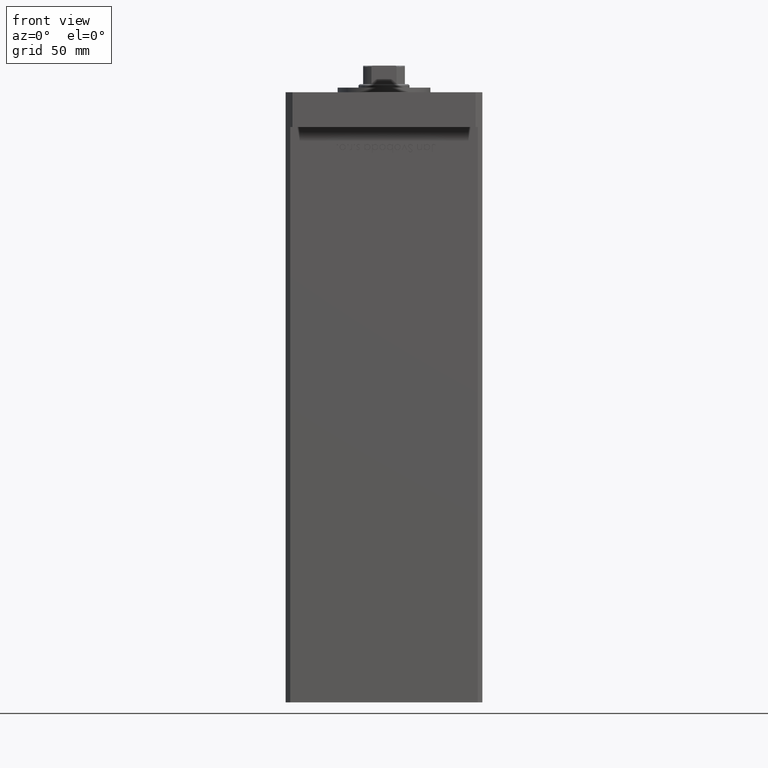
[diagram: clean part render]
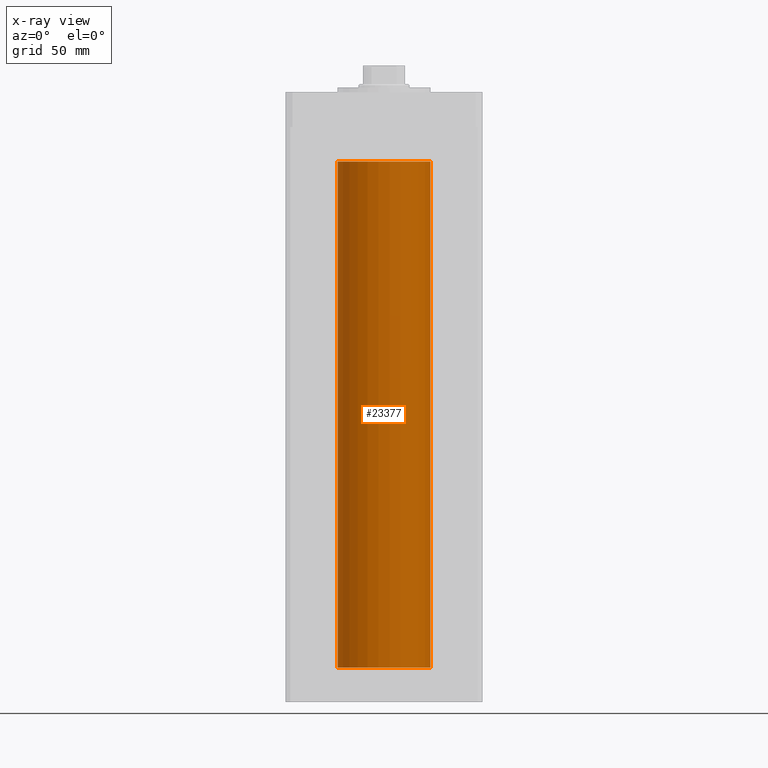
[diagram: x-ray — body ghosted, one internal face saturated and labeled with its STEP entity id]
A machine part, front view, then the same camera in x-ray: the body is ghosted and one INTERNAL B-rep face — a face not visible from any outside direction — is saturated and labeled: STEP entity #23377.
In plain terms, the highlighted cylindrical surface (partial cylindrical patch) has radius 20 mm, axis along (-0, -0, -1).
Its self-contained STEP definition (entity closure, byte-faithful):
#87 = CARTESIAN_POINT ( 'NONE',  ( -20.00000000000000000, 0.000000000000000000, 218.5000000000000000 ) ) ;
#363 = VERTEX_POINT ( 'NONE', #28935 ) ;
#927 = DIRECTION ( 'NONE',  ( 1.000000000000000000, 0.000000000000000000, 0.000000000000000000 ) ) ;
#1542 = ORIENTED_EDGE ( 'NONE', *, *, #49476, .T. ) ;
#1587 = DIRECTION ( 'NONE',  ( -1.000000000000000000, 0.000000000000000000, 0.000000000000000000 ) ) ;
#4600 = LINE ( 'NONE', #21118, #35954 ) ;
#5522 = CARTESIAN_POINT ( 'NONE',  ( 0.000000000000000000, 0.000000000000000000, 218.5000000000000000 ) ) ;
#6184 = VERTEX_POINT ( 'NONE', #29198 ) ;
#6317 = ORIENTED_EDGE ( 'NONE', *, *, #25221, .F. ) ;
#6364 = VERTEX_POINT ( 'NONE', #35152 ) ;
#8379 = EDGE_LOOP ( 'NONE', ( #48616, #1542, #18508, #6317 ) ) ;
#8893 = LINE ( 'NONE', #25409, #16769 ) ;
#9013 = AXIS2_PLACEMENT_3D ( 'NONE', #10513, #22695, #1587 ) ;
#9424 = DIRECTION ( 'NONE',  ( -0.000000000000000000, -0.000000000000000000, -1.000000000000000000 ) ) ;
#10513 = CARTESIAN_POINT ( 'NONE',  ( 0.000000000000000000, 0.000000000000000000, 218.5000000000000000 ) ) ;
#11329 = AXIS2_PLACEMENT_3D ( 'NONE', #5522, #33446, #927 ) ;
#15778 = CARTESIAN_POINT ( 'NONE',  ( 0.000000000000000000, 0.000000000000000000, 0.000000000000000000 ) ) ;
#16769 = VECTOR ( 'NONE', #9424, 1000.000000000000000 ) ;
#18508 = ORIENTED_EDGE ( 'NONE', *, *, #35931, .F. ) ;
#21118 = CARTESIAN_POINT ( 'NONE',  ( -20.00000000000000000, 0.000000000000000000, 218.5000000000000000 ) ) ;
#22695 = DIRECTION ( 'NONE',  ( -0.000000000000000000, -0.000000000000000000, -1.000000000000000000 ) ) ;
#23377 = ADVANCED_FACE ( 'NONE', ( #43594 ), #27021, .F. ) ;
#25221 = EDGE_CURVE ( 'NONE', #30373, #6364, #4600, .T. ) ;
#25409 = CARTESIAN_POINT ( 'NONE',  ( 20.00000000000000000, 2.449293598294706513E-15, 218.5000000000000000 ) ) ;
#25977 = AXIS2_PLACEMENT_3D ( 'NONE', #15778, #28773, #48881 ) ;
#27021 = CYLINDRICAL_SURFACE ( 'NONE', #9013, 20.00000000000000000 ) ;
#28773 = DIRECTION ( 'NONE',  ( -0.000000000000000000, 0.000000000000000000, 1.000000000000000000 ) ) ;
#28935 = CARTESIAN_POINT ( 'NONE',  ( 20.00000000000000000, 2.449293598294706513E-15, 0.000000000000000000 ) ) ;
#29198 = CARTESIAN_POINT ( 'NONE',  ( 20.00000000000000000, 2.449293598294706513E-15, 218.5000000000000000 ) ) ;
#29456 = CIRCLE ( 'NONE', #25977, 20.00000000000000000 ) ;
#30373 = VERTEX_POINT ( 'NONE', #87 ) ;
#32097 = CIRCLE ( 'NONE', #11329, 20.00000000000000000 ) ;
#33446 = DIRECTION ( 'NONE',  ( -0.000000000000000000, 0.000000000000000000, 1.000000000000000000 ) ) ;
#35152 = CARTESIAN_POINT ( 'NONE',  ( -20.00000000000000000, 0.000000000000000000, 0.000000000000000000 ) ) ;
#35931 = EDGE_CURVE ( 'NONE', #6364, #363, #29456, .T. ) ;
#35954 = VECTOR ( 'NONE', #37674, 1000.000000000000000 ) ;
#37674 = DIRECTION ( 'NONE',  ( -0.000000000000000000, -0.000000000000000000, -1.000000000000000000 ) ) ;
#40869 = EDGE_CURVE ( 'NONE', #30373, #6184, #32097, .T. ) ;
#43594 = FACE_OUTER_BOUND ( 'NONE', #8379, .T. ) ;
#48616 = ORIENTED_EDGE ( 'NONE', *, *, #40869, .T. ) ;
#48881 = DIRECTION ( 'NONE',  ( 1.000000000000000000, 0.000000000000000000, 0.000000000000000000 ) ) ;
#49476 = EDGE_CURVE ( 'NONE', #6184, #363, #8893, .T. ) ;